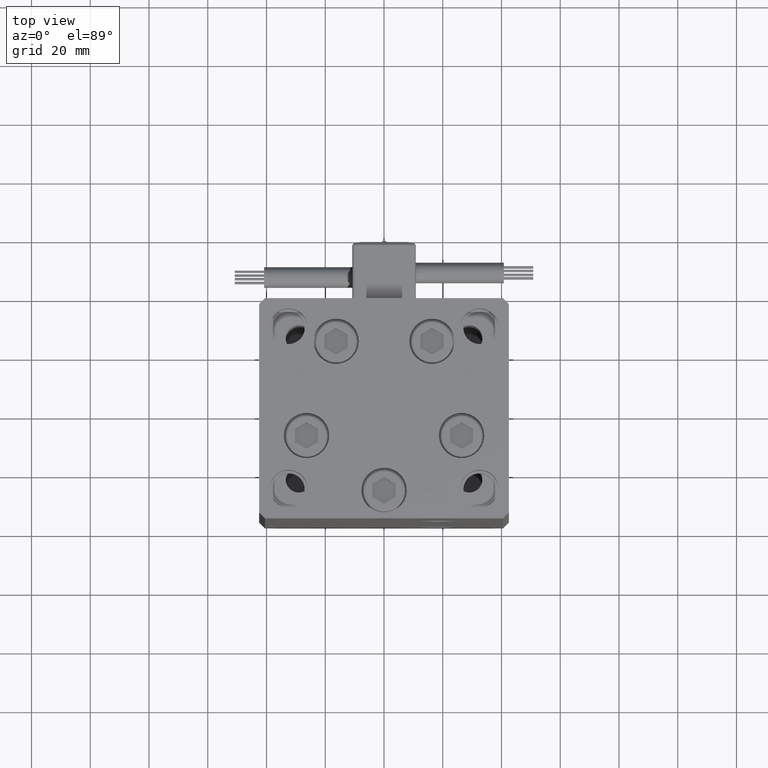
[diagram: clean part render]
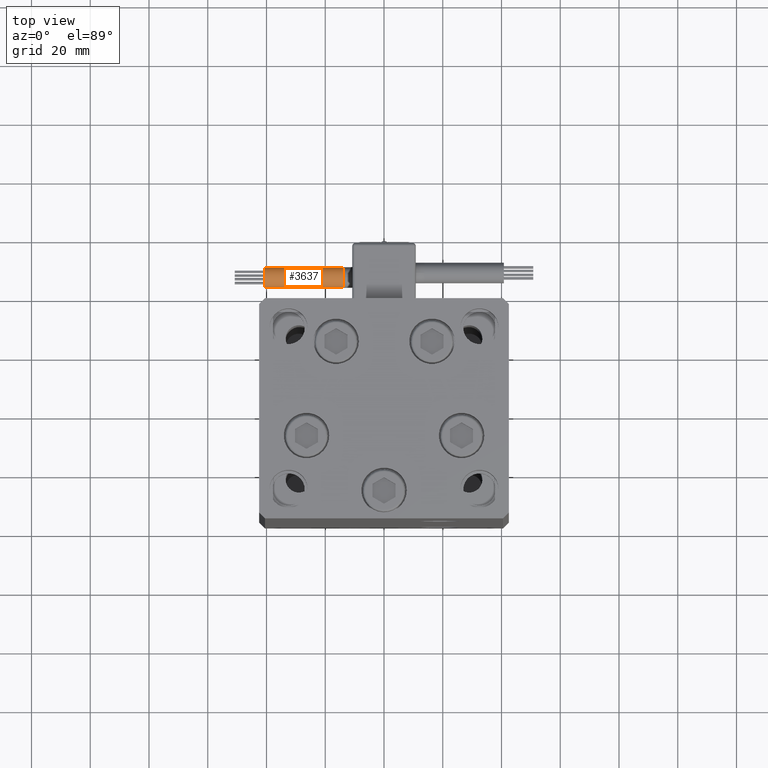
[diagram: same view with one face highlighted and labeled with its STEP entity id]
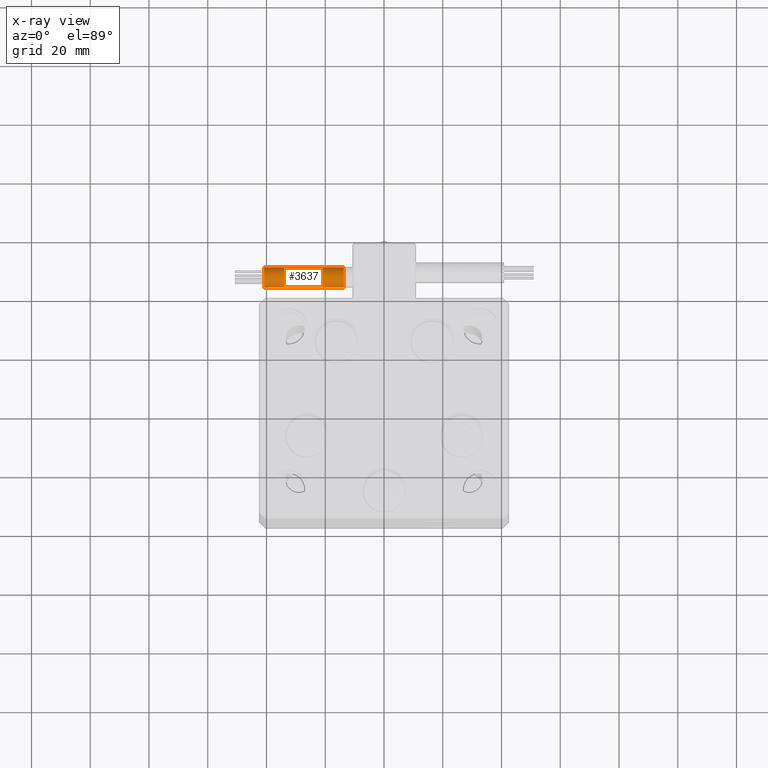
[diagram: x-ray of the same camera — body ghosted, the highlighted face saturated]
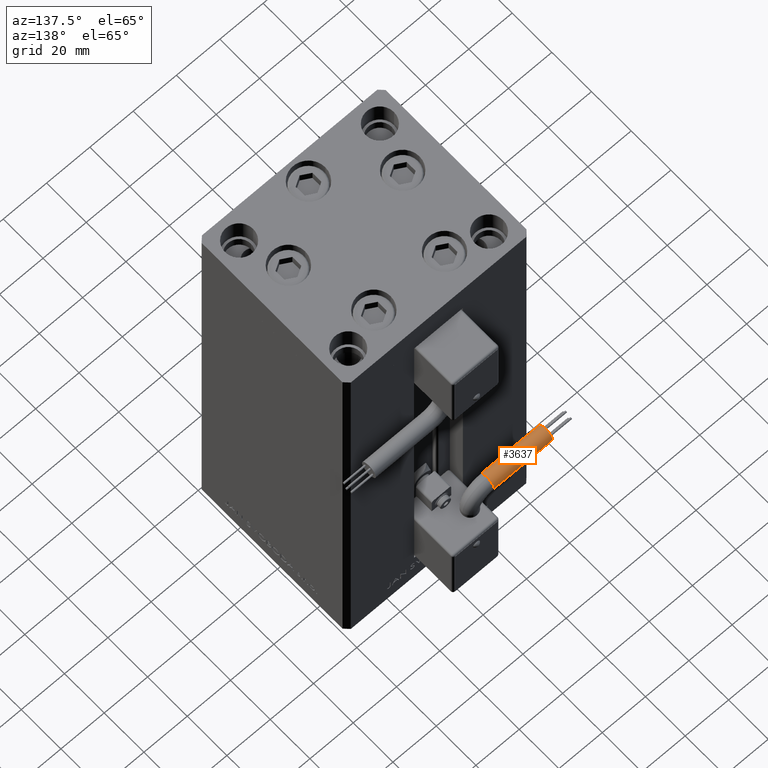
[diagram: same view with one face highlighted and labeled with its STEP entity id]
A machine part, top view. The second image highlights one B-rep face of the part: STEP entity #3637.
The next image is the same camera in x-ray: the body ghosted, the highlighted face saturated — about 0% of this face is hidden behind the body in this view.
A second angle (auxiliary view) of the same face is appended — the face is thin or edge-on in the first view.
In plain terms, the highlighted cylindrical surface (edge-blend (fillet) strip) has radius 3.5 mm, axis along (-1, 0, -0).
Its self-contained STEP definition (entity closure, byte-faithful):
#138 = DIRECTION ( 'NONE',  ( 1.000000000000000000, -2.599999999999999847E-16, 2.220446049250000002E-16 ) ) ;
#3254 = AXIS2_PLACEMENT_3D ( 'NONE', #43160, #51670, #22909 ) ;
#3637 = ADVANCED_FACE ( 'NONE', ( #41077 ), #45590, .T. ) ;
#3918 = CARTESIAN_POINT ( 'NONE',  ( 13.79999999999999893, 42.00000000000000000, -68.50000000000000000 ) ) ;
#3923 = DIRECTION ( 'NONE',  ( 0.000000000000000000, 0.000000000000000000, -1.000000000000000000 ) ) ;
#4815 = DIRECTION ( 'NONE',  ( -4.956352788505158337E-16, -1.000000000000000000, 0.000000000000000000 ) ) ;
#6182 = AXIS2_PLACEMENT_3D ( 'NONE', #14814, #30801, #22283 ) ;
#8112 = VERTEX_POINT ( 'NONE', #31398 ) ;
#8137 = EDGE_CURVE ( 'NONE', #41085, #28724, #35768, .T. ) ;
#9191 = EDGE_CURVE ( 'NONE', #35709, #47093, #24726, .T. ) ;
#10064 = CIRCLE ( 'NONE', #3254, 3.500000000000003109 ) ;
#11330 = CIRCLE ( 'NONE', #6182, 3.500000000000003109 ) ;
#11669 = CARTESIAN_POINT ( 'NONE',  ( 13.79999999999999893, 42.00000000000000000, -65.00000000000000000 ) ) ;
#12209 = DIRECTION ( 'NONE',  ( 1.000000000000000000, -2.599999999999999847E-16, 2.220446049250000002E-16 ) ) ;
#14420 = EDGE_LOOP ( 'NONE', ( #33071, #23957, #18898, #24333, #27166 ) ) ;
#14814 = CARTESIAN_POINT ( 'NONE',  ( 40.80000000000000426, 42.00000000000000000, -65.00000000000000000 ) ) ;
#16038 = CARTESIAN_POINT ( 'NONE',  ( 13.79999999999999893, 42.00000000000000000, -65.00000000000000000 ) ) ;
#16251 = EDGE_CURVE ( 'NONE', #28724, #35709, #10064, .T. ) ;
#16922 = CARTESIAN_POINT ( 'NONE',  ( 13.79999999999999716, 38.50000000000000000, -65.00000000000000000 ) ) ;
#17189 = VECTOR ( 'NONE', #138, 1000.000000000000000 ) ;
#17913 = AXIS2_PLACEMENT_3D ( 'NONE', #11669, #28715, #3923 ) ;
#18898 = ORIENTED_EDGE ( 'NONE', *, *, #9191, .T. ) ;
#21430 = CARTESIAN_POINT ( 'NONE',  ( 13.79999999999999893, 38.50000000000000000, -65.00000000000000000 ) ) ;
#22283 = DIRECTION ( 'NONE',  ( 0.000000000000000000, 0.000000000000000000, -1.000000000000000000 ) ) ;
#22845 = AXIS2_PLACEMENT_3D ( 'NONE', #16038, #32289, #4815 ) ;
#22909 = DIRECTION ( 'NONE',  ( 0.000000000000000000, 0.000000000000000000, -1.000000000000000000 ) ) ;
#23957 = ORIENTED_EDGE ( 'NONE', *, *, #16251, .T. ) ;
#24333 = ORIENTED_EDGE ( 'NONE', *, *, #28913, .F. ) ;
#24726 = LINE ( 'NONE', #36976, #36659 ) ;
#24844 = EDGE_CURVE ( 'NONE', #41085, #8112, #28394, .T. ) ;
#26029 = CARTESIAN_POINT ( 'NONE',  ( 40.80000000000000426, 45.50000000000000711, -65.00000000000000000 ) ) ;
#27166 = ORIENTED_EDGE ( 'NONE', *, *, #24844, .F. ) ;
#28394 = LINE ( 'NONE', #16922, #17189 ) ;
#28715 = DIRECTION ( 'NONE',  ( 1.000000000000000000, 0.000000000000000000, 2.220446049250000002E-16 ) ) ;
#28724 = VERTEX_POINT ( 'NONE', #3918 ) ;
#28913 = EDGE_CURVE ( 'NONE', #8112, #47093, #11330, .T. ) ;
#30801 = DIRECTION ( 'NONE',  ( 1.000000000000000000, 0.000000000000000000, 2.220446049250000002E-16 ) ) ;
#31398 = CARTESIAN_POINT ( 'NONE',  ( 40.80000000000000426, 38.50000000000000000, -65.00000000000000000 ) ) ;
#32289 = DIRECTION ( 'NONE',  ( 1.000000000000000000, -2.599999999999999847E-16, 2.220446049250000002E-16 ) ) ;
#33071 = ORIENTED_EDGE ( 'NONE', *, *, #8137, .T. ) ;
#35709 = VERTEX_POINT ( 'NONE', #51489 ) ;
#35768 = CIRCLE ( 'NONE', #17913, 3.500000000000003109 ) ;
#36659 = VECTOR ( 'NONE', #12209, 1000.000000000000000 ) ;
#36976 = CARTESIAN_POINT ( 'NONE',  ( 13.80000000000000071, 45.50000000000000711, -65.00000000000000000 ) ) ;
#41077 = FACE_OUTER_BOUND ( 'NONE', #14420, .T. ) ;
#41085 = VERTEX_POINT ( 'NONE', #21430 ) ;
#43160 = CARTESIAN_POINT ( 'NONE',  ( 13.79999999999999893, 42.00000000000000000, -65.00000000000000000 ) ) ;
#45590 = CYLINDRICAL_SURFACE ( 'NONE', #22845, 3.500000000000003109 ) ;
#47093 = VERTEX_POINT ( 'NONE', #26029 ) ;
#51489 = CARTESIAN_POINT ( 'NONE',  ( 13.79999999999999893, 45.50000000000000711, -65.00000000000000000 ) ) ;
#51670 = DIRECTION ( 'NONE',  ( 1.000000000000000000, 0.000000000000000000, 2.220446049250000002E-16 ) ) ;